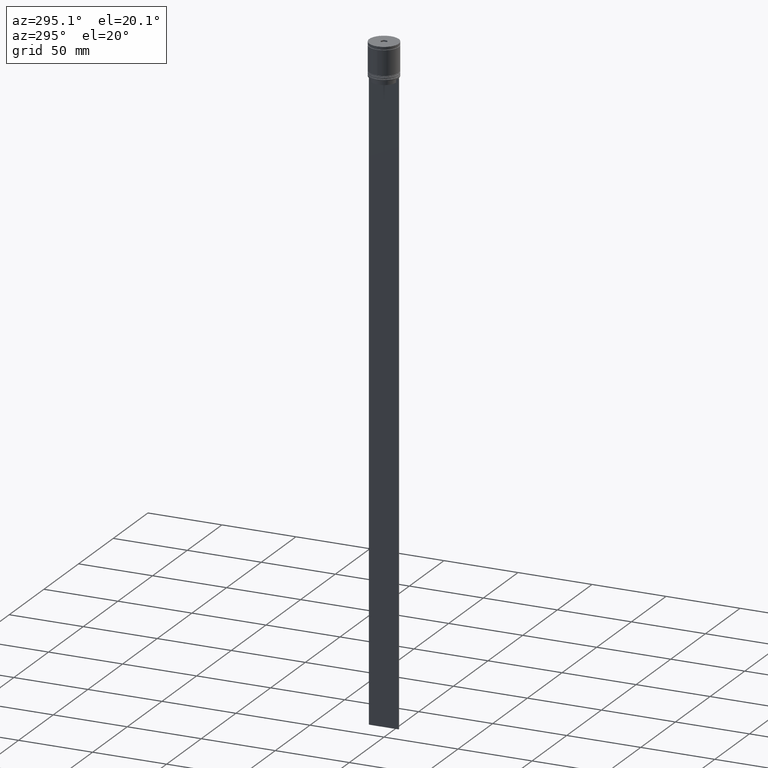
[diagram: clean part render]
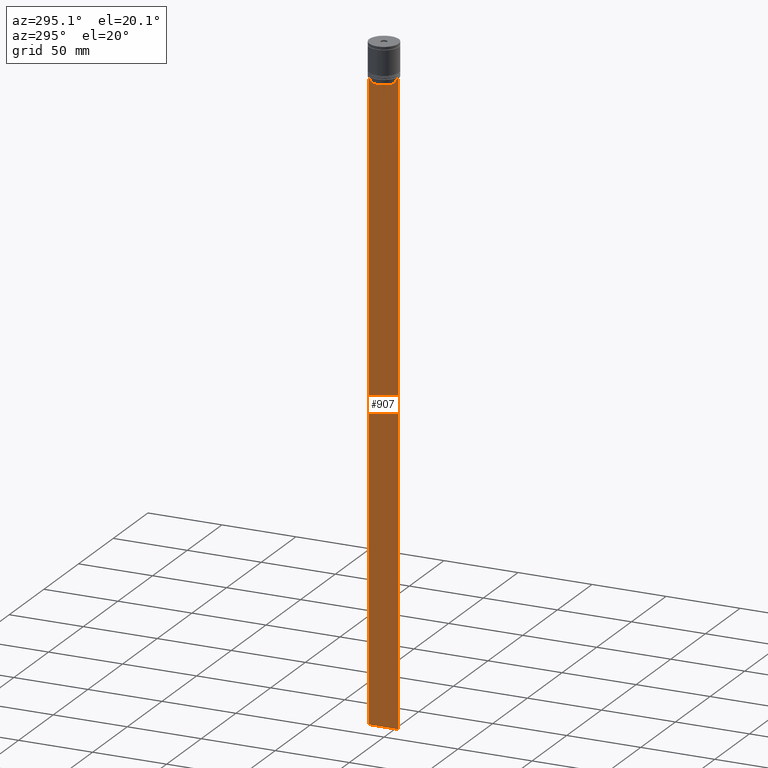
[diagram: same view with one face highlighted and labeled with its STEP entity id]
A machine part, auxiliary view. The second image highlights one B-rep face of the part: STEP entity #907.
In plain terms, the highlighted planar face has unit normal (-1, 0, 0).
Its self-contained STEP definition (entity closure, byte-faithful):
#2 = DIRECTION ( 'NONE',  ( -1.000000000000000000, 0.000000000000000000, 0.000000000000000000 ) ) ;
#16 = VECTOR ( 'NONE', #686, 1000.000000000000000 ) ;
#67 = CARTESIAN_POINT ( 'NONE',  ( -0.5000000000000000000, 9.999999999999994671, -22.50000000000000000 ) ) ;
#108 = CARTESIAN_POINT ( 'NONE',  ( -0.5000000000000000000, -8.719005764482783860, -22.66667454151159689 ) ) ;
#129 = DIRECTION ( 'NONE',  ( 0.000000000000000000, 0.000000000000000000, -1.000000000000000000 ) ) ;
#146 = LINE ( 'NONE', #319, #788 ) ;
#189 = VECTOR ( 'NONE', #1736, 1000.000000000000000 ) ;
#197 = CARTESIAN_POINT ( 'NONE',  ( -0.5000000000000000000, 8.385105843100610912, 0.000000000000000000 ) ) ;
#214 = DIRECTION ( 'NONE',  ( 0.000000000000000000, 1.000000000000000000, 0.000000000000000000 ) ) ;
#247 = DIRECTION ( 'NONE',  ( -0.000000000000000000, -0.000000000000000000, 1.000000000000000000 ) ) ;
#298 = CARTESIAN_POINT ( 'NONE',  ( -0.5000000000000000000, -8.385105843100610912, -25.50000000000000000 ) ) ;
#307 = LINE ( 'NONE', #1101, #189 ) ;
#319 = CARTESIAN_POINT ( 'NONE',  ( -0.5000000000000000000, 9.999999999999998224, -2.475015605499213844 ) ) ;
#384 = CARTESIAN_POINT ( 'NONE',  ( -0.5000000000000000000, 8.385105843100610912, -23.00000000000000000 ) ) ;
#413 = DIRECTION ( 'NONE',  ( 0.000000000000000000, -1.000000000000000000, 0.000000000000000000 ) ) ;
#433 = CARTESIAN_POINT ( 'NONE',  ( -0.5000000000000000000, 9.999999999999998224, -446.5000000000000000 ) ) ;
#472 = CARTESIAN_POINT ( 'NONE',  ( -0.5000000000000000000, 9.887365675446622149, -22.50000000000000000 ) ) ;
#480 = CARTESIAN_POINT ( 'NONE',  ( -0.5000000000000000000, 8.552060201981374732, -22.83334167021640582 ) ) ;
#536 = ORIENTED_EDGE ( 'NONE', *, *, #1088, .F. ) ;
#537 = EDGE_CURVE ( 'NONE', #846, #843, #1241, .T. ) ;
#538 = CARTESIAN_POINT ( 'NONE',  ( -0.5000000000000000000, -10.00000000000000178, -22.50000000000000000 ) ) ;
#542 = ORIENTED_EDGE ( 'NONE', *, *, #1333, .F. ) ;
#576 = EDGE_CURVE ( 'NONE', #714, #1142, #1852, .T. ) ;
#578 = VERTEX_POINT ( 'NONE', #433 ) ;
#595 = CARTESIAN_POINT ( 'NONE',  ( -0.5000000000000000000, -8.885943956609226646, -22.50000000000000000 ) ) ;
#597 = VECTOR ( 'NONE', #413, 1000.000000000000000 ) ;
#617 = PLANE ( 'NONE',  #1594 ) ;
#638 = CARTESIAN_POINT ( 'NONE',  ( -0.5000000000000000000, 8.400000000000000355, -25.50000000000000000 ) ) ;
#650 = ORIENTED_EDGE ( 'NONE', *, *, #1719, .F. ) ;
#655 = CARTESIAN_POINT ( 'NONE',  ( -0.5000000000000000000, 8.385105843100610912, -25.50000000000000000 ) ) ;
#661 = CARTESIAN_POINT ( 'NONE',  ( -0.5000000000000000000, 8.385105843100610912, -23.00000000000000000 ) ) ;
#686 = DIRECTION ( 'NONE',  ( 0.000000000000000000, 0.000000000000000000, -1.000000000000000000 ) ) ;
#702 = CARTESIAN_POINT ( 'NONE',  ( -0.5000000000000000000, 8.885943956609226646, -22.50000000000000000 ) ) ;
#712 = ORIENTED_EDGE ( 'NONE', *, *, #1675, .F. ) ;
#714 = VERTEX_POINT ( 'NONE', #1610 ) ;
#738 = LINE ( 'NONE', #1042, #1398 ) ;
#772 = VERTEX_POINT ( 'NONE', #1931 ) ;
#774 = LINE ( 'NONE', #1424, #2070 ) ;
#788 = VECTOR ( 'NONE', #129, 1000.000000000000000 ) ;
#795 = ORIENTED_EDGE ( 'NONE', *, *, #1561, .F. ) ;
#812 = LINE ( 'NONE', #1995, #597 ) ;
#821 = VERTEX_POINT ( 'NONE', #702 ) ;
#843 = VERTEX_POINT ( 'NONE', #1034 ) ;
#846 = VERTEX_POINT ( 'NONE', #538 ) ;
#907 = ADVANCED_FACE ( 'NONE', ( #1444 ), #617, .T. ) ;
#909 = DIRECTION ( 'NONE',  ( 0.000000000000000000, -1.000000000000000000, 0.000000000000000000 ) ) ;
#920 = DIRECTION ( 'NONE',  ( 0.000000000000000000, -1.000000000000000000, 0.000000000000000000 ) ) ;
#953 = EDGE_CURVE ( 'NONE', #1243, #578, #146, .T. ) ;
#958 = DIRECTION ( 'NONE',  ( 0.000000000000000000, -1.000000000000000000, 0.000000000000000000 ) ) ;
#976 = B_SPLINE_CURVE_WITH_KNOTS ( 'NONE', 3,
 ( #1094, #1728, #480, #661 ),
 .UNSPECIFIED., .F., .F.,
 ( 4, 4 ),
 ( 0.01511546479386905242, 0.01582316445439076874 ),
 .UNSPECIFIED. ) ;
#1013 = EDGE_CURVE ( 'NONE', #772, #846, #307, .T. ) ;
#1014 = VERTEX_POINT ( 'NONE', #298 ) ;
#1017 = CARTESIAN_POINT ( 'NONE',  ( -0.5000000000000000000, -10.00000000000000178, -446.5000000000000000 ) ) ;
#1034 = CARTESIAN_POINT ( 'NONE',  ( -0.5000000000000000000, -10.00000000000000178, -446.5000000000000000 ) ) ;
#1042 = CARTESIAN_POINT ( 'NONE',  ( -0.5000000000000000000, -8.385105843100610912, 0.000000000000000000 ) ) ;
#1062 = ORIENTED_EDGE ( 'NONE', *, *, #1207, .F. ) ;
#1063 = VERTEX_POINT ( 'NONE', #384 ) ;
#1065 = VECTOR ( 'NONE', #909, 1000.000000000000000 ) ;
#1077 = DIRECTION ( 'NONE',  ( 0.000000000000000000, 0.000000000000000000, -1.000000000000000000 ) ) ;
#1088 = EDGE_CURVE ( 'NONE', #1063, #1493, #1633, .T. ) ;
#1094 = CARTESIAN_POINT ( 'NONE',  ( -0.5000000000000000000, 8.885943956609226646, -22.50000000000000000 ) ) ;
#1101 = CARTESIAN_POINT ( 'NONE',  ( -0.5000000000000000000, -10.00000000000000178, -22.50000000000000000 ) ) ;
#1122 = LINE ( 'NONE', #638, #1930 ) ;
#1129 = ORIENTED_EDGE ( 'NONE', *, *, #953, .T. ) ;
#1142 = VERTEX_POINT ( 'NONE', #595 ) ;
#1193 = EDGE_CURVE ( 'NONE', #1641, #821, #1707, .T. ) ;
#1207 = EDGE_CURVE ( 'NONE', #1014, #714, #738, .T. ) ;
#1213 = ORIENTED_EDGE ( 'NONE', *, *, #1193, .F. ) ;
#1221 = ORIENTED_EDGE ( 'NONE', *, *, #576, .F. ) ;
#1241 = LINE ( 'NONE', #1898, #1737 ) ;
#1243 = VERTEX_POINT ( 'NONE', #67 ) ;
#1257 = DIRECTION ( 'NONE',  ( 0.000000000000000000, 0.000000000000000000, 1.000000000000000000 ) ) ;
#1331 = LINE ( 'NONE', #1017, #1602 ) ;
#1333 = EDGE_CURVE ( 'NONE', #1493, #1014, #1122, .T. ) ;
#1398 = VECTOR ( 'NONE', #247, 1000.000000000000000 ) ;
#1414 = ORIENTED_EDGE ( 'NONE', *, *, #1527, .F. ) ;
#1424 = CARTESIAN_POINT ( 'NONE',  ( -0.5000000000000000000, -10.00000000000000178, -22.50000000000000000 ) ) ;
#1433 = CARTESIAN_POINT ( 'NONE',  ( -0.5000000000000000000, -8.552060194457768105, -22.83334167772666845 ) ) ;
#1444 = FACE_OUTER_BOUND ( 'NONE', #1724, .T. ) ;
#1479 = ORIENTED_EDGE ( 'NONE', *, *, #537, .F. ) ;
#1493 = VERTEX_POINT ( 'NONE', #655 ) ;
#1527 = EDGE_CURVE ( 'NONE', #843, #578, #1331, .T. ) ;
#1535 = CARTESIAN_POINT ( 'NONE',  ( -0.5000000000000000000, -10.00000000000000178, -22.50000000000000000 ) ) ;
#1561 = EDGE_CURVE ( 'NONE', #1142, #772, #812, .T. ) ;
#1594 = AXIS2_PLACEMENT_3D ( 'NONE', #2047, #2, #1257 ) ;
#1602 = VECTOR ( 'NONE', #214, 1000.000000000000000 ) ;
#1610 = CARTESIAN_POINT ( 'NONE',  ( -0.5000000000000000000, -8.385105843100610912, -23.00000000000000000 ) ) ;
#1633 = LINE ( 'NONE', #197, #16 ) ;
#1641 = VERTEX_POINT ( 'NONE', #472 ) ;
#1670 = ORIENTED_EDGE ( 'NONE', *, *, #1013, .F. ) ;
#1675 = EDGE_CURVE ( 'NONE', #1243, #1641, #774, .T. ) ;
#1707 = LINE ( 'NONE', #1535, #1065 ) ;
#1719 = EDGE_CURVE ( 'NONE', #821, #1063, #976, .T. ) ;
#1724 = EDGE_LOOP ( 'NONE', ( #650, #1213, #712, #1129, #1414, #1479, #1670, #795, #1221, #1062, #542, #536 ) ) ;
#1728 = CARTESIAN_POINT ( 'NONE',  ( -0.5000000000000000000, 8.719005771582342135, -22.66667453442325098 ) ) ;
#1736 = DIRECTION ( 'NONE',  ( 0.000000000000000000, -1.000000000000000000, 0.000000000000000000 ) ) ;
#1737 = VECTOR ( 'NONE', #1077, 1000.000000000000000 ) ;
#1852 = B_SPLINE_CURVE_WITH_KNOTS ( 'NONE', 3,
 ( #2032, #1433, #108, #1887 ),
 .UNSPECIFIED., .F., .F.,
 ( 4, 4 ),
 ( 0.03898465126933125385, 0.03969388910599652709 ),
 .UNSPECIFIED. ) ;
#1887 = CARTESIAN_POINT ( 'NONE',  ( -0.5000000000000000000, -8.885943956609226646, -22.50000000000000000 ) ) ;
#1898 = CARTESIAN_POINT ( 'NONE',  ( -0.5000000000000000000, -10.00000000000000178, -2.475015605499213844 ) ) ;
#1930 = VECTOR ( 'NONE', #958, 1000.000000000000000 ) ;
#1931 = CARTESIAN_POINT ( 'NONE',  ( -0.5000000000000000000, -9.887365675446622149, -22.50000000000000000 ) ) ;
#1995 = CARTESIAN_POINT ( 'NONE',  ( -0.5000000000000000000, -10.00000000000000178, -22.50000000000000000 ) ) ;
#2032 = CARTESIAN_POINT ( 'NONE',  ( -0.5000000000000000000, -8.385105843100610912, -23.00000000000000000 ) ) ;
#2047 = CARTESIAN_POINT ( 'NONE',  ( -0.5000000000000000000, -10.00000000000000178, -2.475015605499213844 ) ) ;
#2070 = VECTOR ( 'NONE', #920, 1000.000000000000000 ) ;